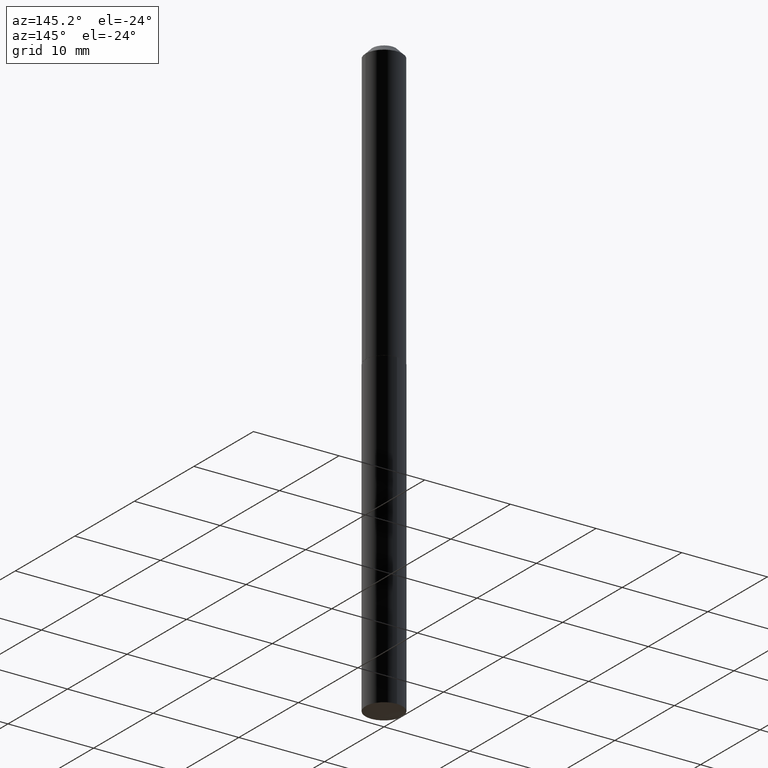
[diagram: clean part render]
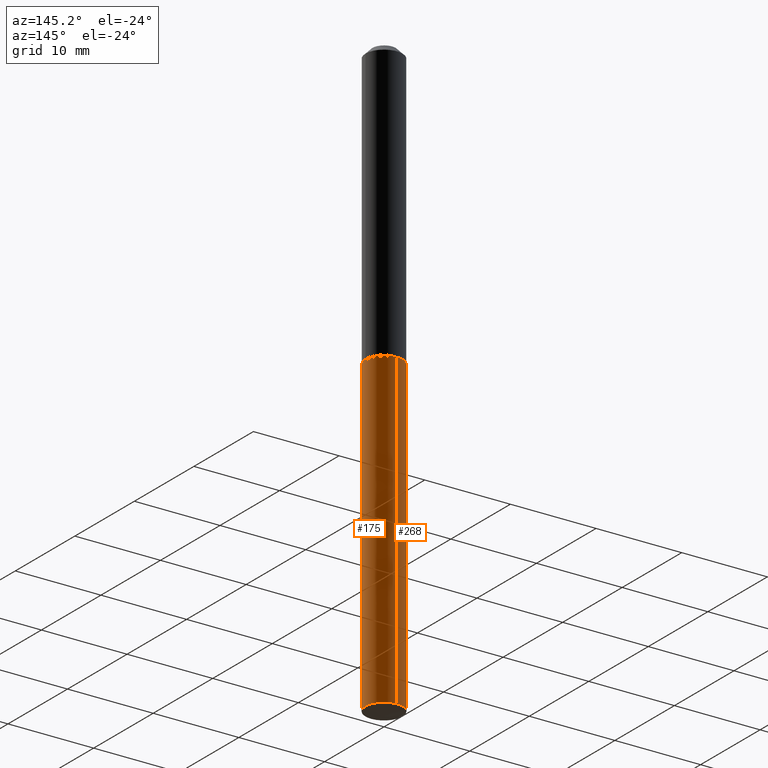
[diagram: same view with one multi-face feature highlighted, each face labeled with its STEP entity id]
A machine part, auxiliary view. The highlighted faces form ONE feature: a constant-radius fillet chain: 2 tangent blend faces with common blend radius 2.1526 mm. The faces share edges in the B-rep.
Their STEP definitions:
[1] entity #175 (Cylinder):
#5 = EDGE_CURVE ( 'NONE', #271, #358, #251, .T. ) ;
#7 = DIRECTION ( 'NONE',  ( -2.445429915392048284E-29, 3.491537032672374464E-15, 1.000000000000000000 ) ) ;
#23 = CARTESIAN_POINT ( 'NONE',  ( 3.165659369606658777E-29, -4.519722593132451811E-15, -1.294499999999999762 ) ) ;
#33 = CARTESIAN_POINT ( 'NONE',  ( -5.918060869338440545E-16, -0.08475000000000951217, -2.727291305941462074 ) ) ;
#46 = DIRECTION ( 'NONE',  ( -6.982962677686265922E-15, -1.000000000000000000, 6.446838923101506686E-15 ) ) ;
#52 = CYLINDRICAL_SURFACE ( 'NONE', #342, 0.08474999999999999201 ) ;
#66 = ORIENTED_EDGE ( 'NONE', *, *, #190, .F. ) ;
#76 = EDGE_CURVE ( 'NONE', #88, #309, #123, .T. ) ;
#81 = DIRECTION ( 'NONE',  ( -6.982962677686265922E-15, -1.000000000000000000, 3.223419461550753343E-15 ) ) ;
#88 = VERTEX_POINT ( 'NONE', #33 ) ;
#94 = ORIENTED_EDGE ( 'NONE', *, *, #76, .F. ) ;
#104 = VECTOR ( 'NONE', #237, 39.37007874015748143 ) ;
#109 = DIRECTION ( 'NONE',  ( -2.445429915392048284E-29, 3.491537032672374464E-15, 1.000000000000000000 ) ) ;
#118 = CARTESIAN_POINT ( 'NONE',  ( 6.021849685567515095E-16, 0.08474999999999043021, -2.727291305941463406 ) ) ;
#121 = AXIS2_PLACEMENT_3D ( 'NONE', #162, #109, #46 ) ;
#123 = LINE ( 'NONE', #211, #104 ) ;
#124 = EDGE_CURVE ( 'NONE', #88, #271, #297, .T. ) ;
#130 = VECTOR ( 'NONE', #7, 39.37007874015748143 ) ;
#135 = ORIENTED_EDGE ( 'NONE', *, *, #5, .T. ) ;
#143 = CARTESIAN_POINT ( 'NONE',  ( -5.918060869338793560E-16, -0.08475000000000451617, -1.294499999999999540 ) ) ;
#162 = CARTESIAN_POINT ( 'NONE',  ( 6.669450091669553743E-29, -9.522366497918082470E-15, -2.727291305941462962 ) ) ;
#175 = ADVANCED_FACE ( 'NONE', ( #348 ), #52, .T. ) ;
#178 = AXIS2_PLACEMENT_3D ( 'NONE', #23, #385, #81 ) ;
#186 = CARTESIAN_POINT ( 'NONE',  ( 3.165659369606658777E-29, -4.519722593132451811E-15, -1.294499999999999762 ) ) ;
#190 = EDGE_CURVE ( 'NONE', #309, #358, #354, .T. ) ;
#211 = CARTESIAN_POINT ( 'NONE',  ( -5.918060869338793560E-16, -0.08475000000000451617, -1.294499999999999540 ) ) ;
#224 = DIRECTION ( 'NONE',  ( -2.445429915392048284E-29, 3.491537032672374464E-15, 1.000000000000000000 ) ) ;
#230 = EDGE_LOOP ( 'NONE', ( #259, #135, #66, #94 ) ) ;
#237 = DIRECTION ( 'NONE',  ( -2.445429915392048284E-29, 3.491537032672374464E-15, 1.000000000000000000 ) ) ;
#251 = LINE ( 'NONE', #371, #130 ) ;
#259 = ORIENTED_EDGE ( 'NONE', *, *, #124, .T. ) ;
#264 = DIRECTION ( 'NONE',  ( -6.982962677686265922E-15, -1.000000000000000000, 3.223419461550753343E-15 ) ) ;
#271 = VERTEX_POINT ( 'NONE', #118 ) ;
#297 = CIRCLE ( 'NONE', #121, 0.08474999999999999201 ) ;
#309 = VERTEX_POINT ( 'NONE', #143 ) ;
#342 = AXIS2_PLACEMENT_3D ( 'NONE', #186, #224, #264 ) ;
#348 = FACE_OUTER_BOUND ( 'NONE', #230, .T. ) ;
#354 = CIRCLE ( 'NONE', #178, 0.08474999999999999201 ) ;
#358 = VERTEX_POINT ( 'NONE', #359 ) ;
#359 = CARTESIAN_POINT ( 'NONE',  ( 6.021849685567517067E-16, 0.08474999999999546785, -1.294499999999999984 ) ) ;
#371 = CARTESIAN_POINT ( 'NONE',  ( 6.021849685567164052E-16, 0.08474999999999546785, -1.294499999999999984 ) ) ;
#385 = DIRECTION ( 'NONE',  ( -2.445429915392048284E-29, 3.491537032672374464E-15, 1.000000000000000000 ) ) ;
[2] entity #268 (Cylinder):
#5 = EDGE_CURVE ( 'NONE', #271, #358, #251, .T. ) ;
#7 = DIRECTION ( 'NONE',  ( -2.445429915392048284E-29, 3.491537032672374464E-15, 1.000000000000000000 ) ) ;
#33 = CARTESIAN_POINT ( 'NONE',  ( -5.918060869338440545E-16, -0.08475000000000951217, -2.727291305941462074 ) ) ;
#37 = CIRCLE ( 'NONE', #369, 0.08474999999999999201 ) ;
#61 = FACE_OUTER_BOUND ( 'NONE', #150, .T. ) ;
#62 = DIRECTION ( 'NONE',  ( -2.445429915392048284E-29, 3.491537032672374464E-15, 1.000000000000000000 ) ) ;
#63 = AXIS2_PLACEMENT_3D ( 'NONE', #68, #177, #276 ) ;
#67 = EDGE_CURVE ( 'NONE', #271, #88, #231, .T. ) ;
#68 = CARTESIAN_POINT ( 'NONE',  ( 6.669450091669553743E-29, -9.522366497918082470E-15, -2.727291305941462962 ) ) ;
#76 = EDGE_CURVE ( 'NONE', #88, #309, #123, .T. ) ;
#86 = CYLINDRICAL_SURFACE ( 'NONE', #154, 0.08474999999999999201 ) ;
#88 = VERTEX_POINT ( 'NONE', #33 ) ;
#91 = ORIENTED_EDGE ( 'NONE', *, *, #76, .T. ) ;
#92 = DIRECTION ( 'NONE',  ( -6.982962677686265922E-15, -1.000000000000000000, 3.223419461550753343E-15 ) ) ;
#104 = VECTOR ( 'NONE', #237, 39.37007874015748143 ) ;
#111 = ORIENTED_EDGE ( 'NONE', *, *, #67, .T. ) ;
#118 = CARTESIAN_POINT ( 'NONE',  ( 6.021849685567515095E-16, 0.08474999999999043021, -2.727291305941463406 ) ) ;
#123 = LINE ( 'NONE', #211, #104 ) ;
#130 = VECTOR ( 'NONE', #7, 39.37007874015748143 ) ;
#137 = DIRECTION ( 'NONE',  ( -2.445429915392048284E-29, 3.491537032672374464E-15, 1.000000000000000000 ) ) ;
#143 = CARTESIAN_POINT ( 'NONE',  ( -5.918060869338793560E-16, -0.08475000000000451617, -1.294499999999999540 ) ) ;
#150 = EDGE_LOOP ( 'NONE', ( #333, #111, #91, #164 ) ) ;
#154 = AXIS2_PLACEMENT_3D ( 'NONE', #302, #62, #92 ) ;
#164 = ORIENTED_EDGE ( 'NONE', *, *, #363, .F. ) ;
#177 = DIRECTION ( 'NONE',  ( -2.445429915392048284E-29, 3.491537032672374464E-15, 1.000000000000000000 ) ) ;
#211 = CARTESIAN_POINT ( 'NONE',  ( -5.918060869338793560E-16, -0.08475000000000451617, -1.294499999999999540 ) ) ;
#231 = CIRCLE ( 'NONE', #63, 0.08474999999999999201 ) ;
#237 = DIRECTION ( 'NONE',  ( -2.445429915392048284E-29, 3.491537032672374464E-15, 1.000000000000000000 ) ) ;
#251 = LINE ( 'NONE', #371, #130 ) ;
#266 = CARTESIAN_POINT ( 'NONE',  ( 3.165659369606658777E-29, -4.519722593132451811E-15, -1.294499999999999762 ) ) ;
#268 = ADVANCED_FACE ( 'NONE', ( #61 ), #86, .T. ) ;
#269 = DIRECTION ( 'NONE',  ( -6.982962677686265922E-15, -1.000000000000000000, 3.223419461550753343E-15 ) ) ;
#271 = VERTEX_POINT ( 'NONE', #118 ) ;
#276 = DIRECTION ( 'NONE',  ( -6.982962677686265922E-15, -1.000000000000000000, 6.446838923101506686E-15 ) ) ;
#302 = CARTESIAN_POINT ( 'NONE',  ( 3.165659369606658777E-29, -4.519722593132451811E-15, -1.294499999999999762 ) ) ;
#309 = VERTEX_POINT ( 'NONE', #143 ) ;
#333 = ORIENTED_EDGE ( 'NONE', *, *, #5, .F. ) ;
#358 = VERTEX_POINT ( 'NONE', #359 ) ;
#359 = CARTESIAN_POINT ( 'NONE',  ( 6.021849685567517067E-16, 0.08474999999999546785, -1.294499999999999984 ) ) ;
#363 = EDGE_CURVE ( 'NONE', #358, #309, #37, .T. ) ;
#369 = AXIS2_PLACEMENT_3D ( 'NONE', #266, #137, #269 ) ;
#371 = CARTESIAN_POINT ( 'NONE',  ( 6.021849685567164052E-16, 0.08474999999999546785, -1.294499999999999984 ) ) ;